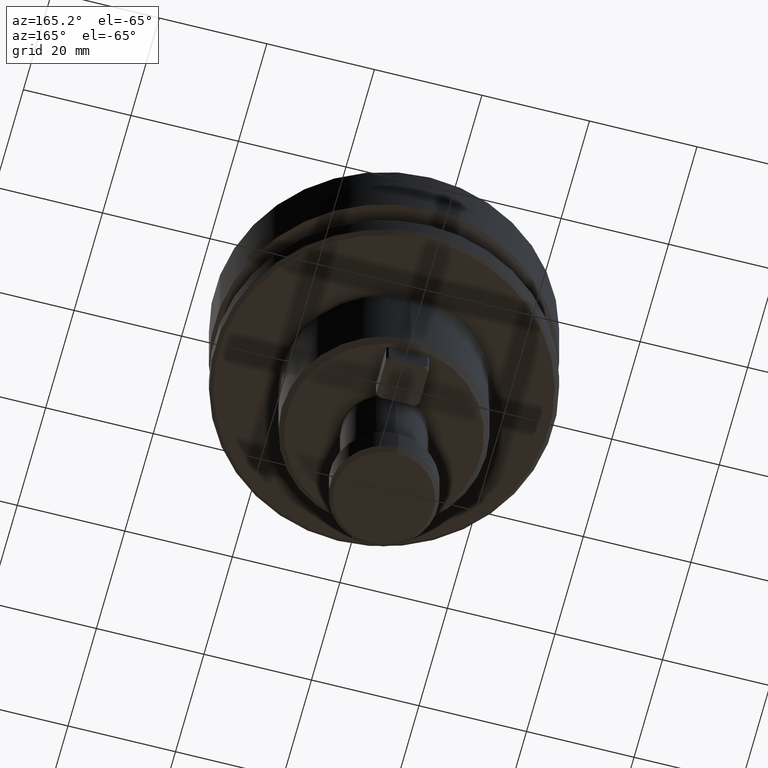
[diagram: clean part render]
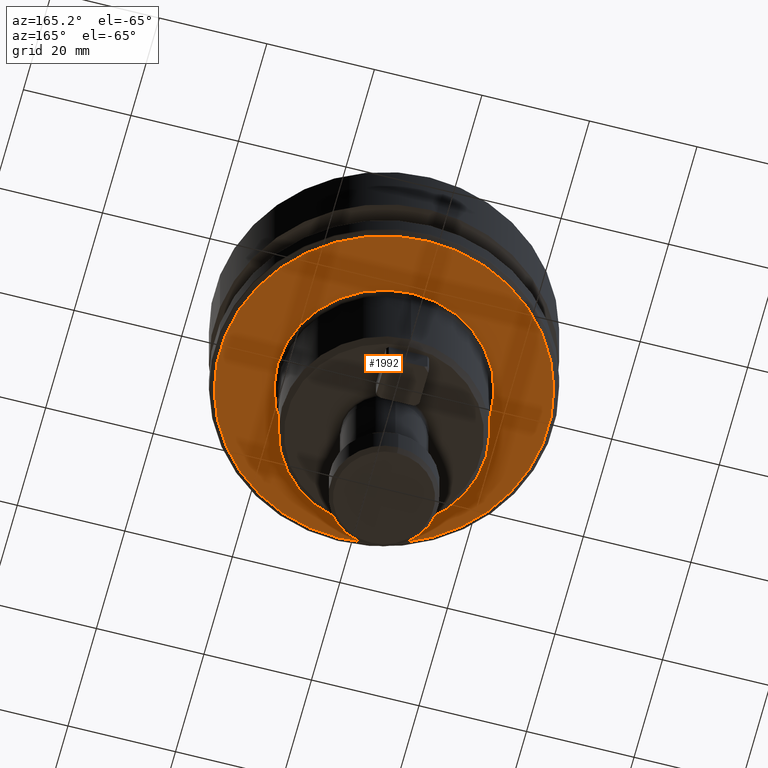
[diagram: same view with one face highlighted and labeled with its STEP entity id]
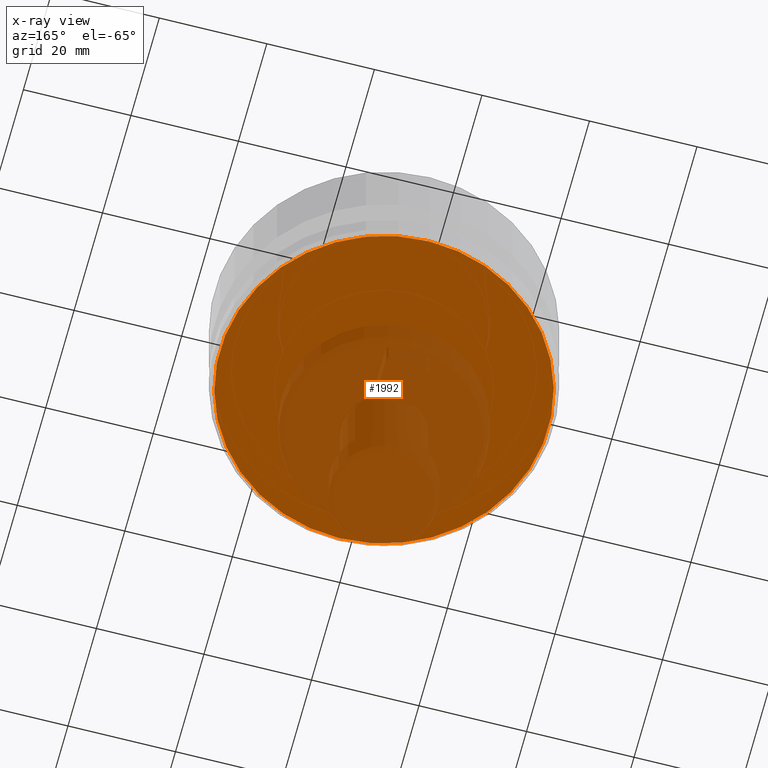
[diagram: x-ray of the same camera — body ghosted, the highlighted face saturated]
A machine part, auxiliary view. The second image highlights one B-rep face of the part: STEP entity #1992.
The next image is the same camera in x-ray: the body ghosted, the highlighted face saturated — about 43% of this face is hidden behind the body in this view.
In plain terms, the highlighted planar face has unit normal (-0, 0, -1).
Its self-contained STEP definition (entity closure, byte-faithful):
#65 = CARTESIAN_POINT ( 'NONE',  ( -53.99617525390561200, -5.688936868964619400, 37.23824922329685400 ) ) ;
#117 = DIRECTION ( 'NONE',  ( -0.9949159890929081300, -0.1007083643362366900, 0.0000000000000000000 ) ) ;
#175 = AXIS2_PLACEMENT_3D ( 'NONE', #926, #2482, #1146 ) ;
#436 = ORIENTED_EDGE ( 'NONE', *, *, #1748, .F. ) ;
#552 = FACE_OUTER_BOUND ( 'NONE', #2308, .T. ) ;
#674 = VERTEX_POINT ( 'NONE', #65 ) ;
#926 = CARTESIAN_POINT ( 'NONE',  ( -23.61709746719498100, -2.613875991983149600, 37.23824922329685400 ) ) ;
#1032 = AXIS2_PLACEMENT_3D ( 'NONE', #2813, #1486, #117 ) ;
#1146 = DIRECTION ( 'NONE',  ( 0.9949159890929082400, 0.1007083643362367000, 0.0000000000000000000 ) ) ;
#1151 = CIRCLE ( 'NONE', #175, 30.53431457505075700 ) ;
#1242 = PLANE ( 'NONE',  #1032 ) ;
#1264 = CARTESIAN_POINT ( 'NONE',  ( -23.61709746719498100, -2.613875991983149600, 37.23824922329685400 ) ) ;
#1317 = ORIENTED_EDGE ( 'NONE', *, *, #2022, .F. ) ;
#1337 = AXIS2_PLACEMENT_3D ( 'NONE', #1264, #2831, #1500 ) ;
#1486 = DIRECTION ( 'NONE',  ( -0.0000000000000000000, 0.0000000000000000000, -1.000000000000000000 ) ) ;
#1493 = CARTESIAN_POINT ( 'NONE',  ( 6.761980319515648900, 0.4611848849983249400, 37.23824922329685400 ) ) ;
#1500 = DIRECTION ( 'NONE',  ( 0.9949159890929082400, 0.1007083643362367000, 0.0000000000000000000 ) ) ;
#1748 = EDGE_CURVE ( 'NONE', #2012, #674, #1151, .T. ) ;
#1992 = ADVANCED_FACE ( 'NONE', ( #552 ), #1242, .T. ) ;
#2012 = VERTEX_POINT ( 'NONE', #1493 ) ;
#2022 = EDGE_CURVE ( 'NONE', #674, #2012, #2880, .T. ) ;
#2308 = EDGE_LOOP ( 'NONE', ( #436, #1317 ) ) ;
#2482 = DIRECTION ( 'NONE',  ( 0.0000000000000000000, 0.0000000000000000000, 1.000000000000000000 ) ) ;
#2813 = CARTESIAN_POINT ( 'NONE',  ( -23.61709746719498100, -2.613875991983146000, 37.23824922329685400 ) ) ;
#2831 = DIRECTION ( 'NONE',  ( 0.0000000000000000000, 0.0000000000000000000, 1.000000000000000000 ) ) ;
#2880 = CIRCLE ( 'NONE', #1337, 30.53431457505075700 ) ;